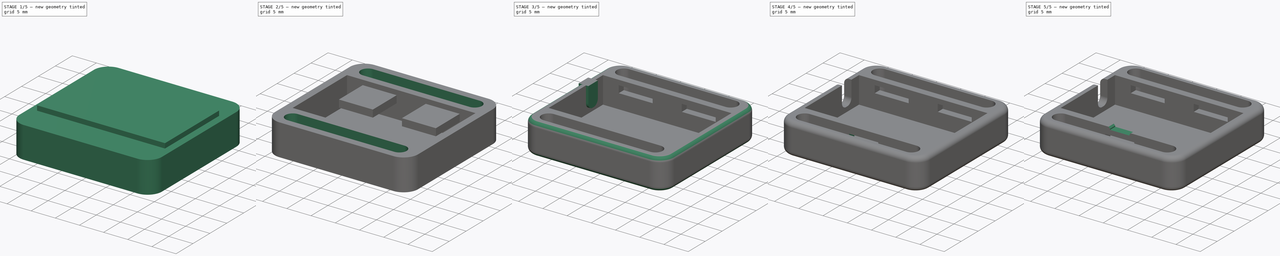
[diagram: build sequence overview — one tinted view per stage of 5, left to right]
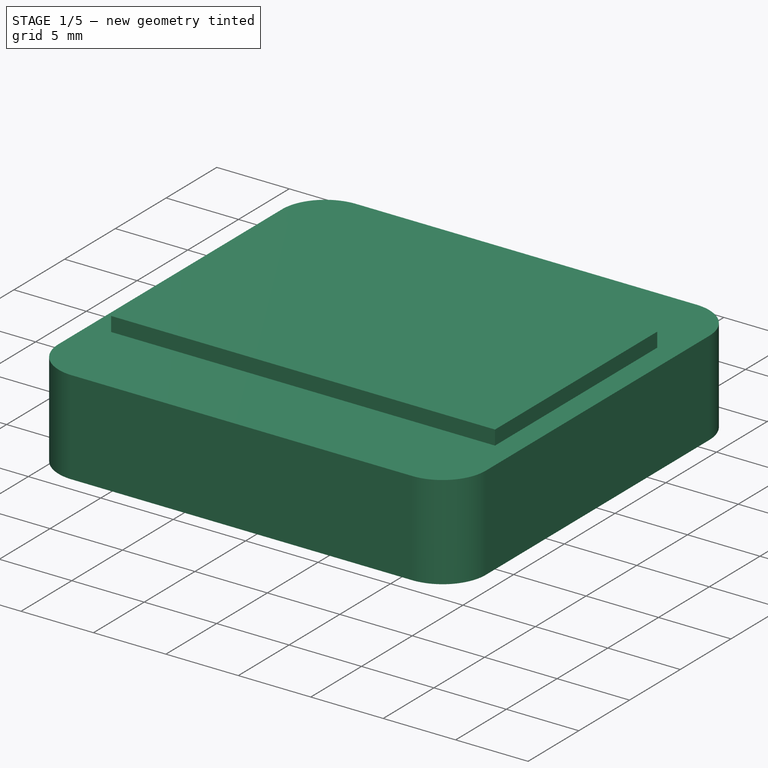
[diagram: stage 1 of 5 — iso view after this stage's code; geometry added in this stage tinted green]
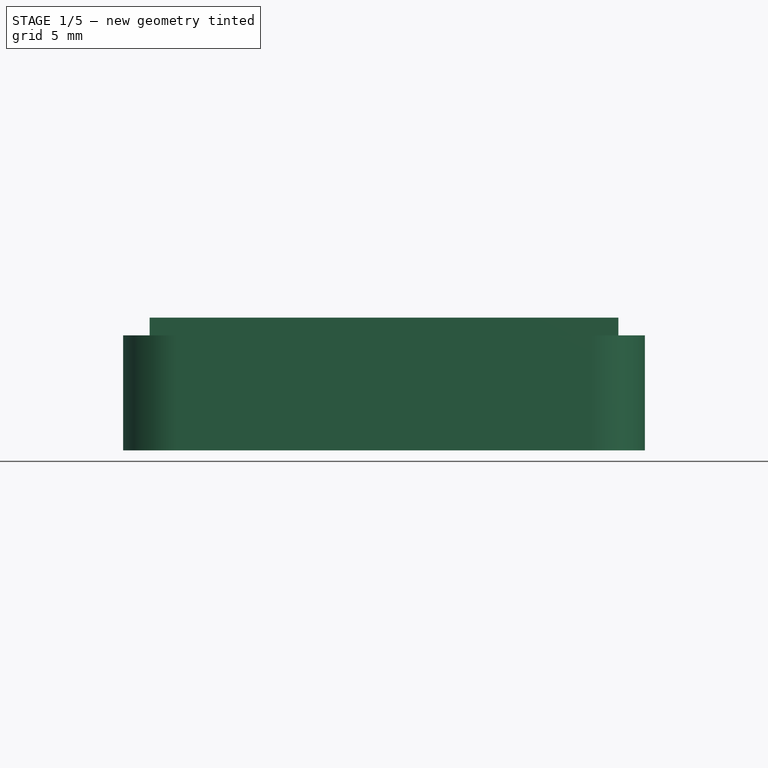
[diagram: stage 1 of 5 — front view after this stage's code; geometry added in this stage tinted green]
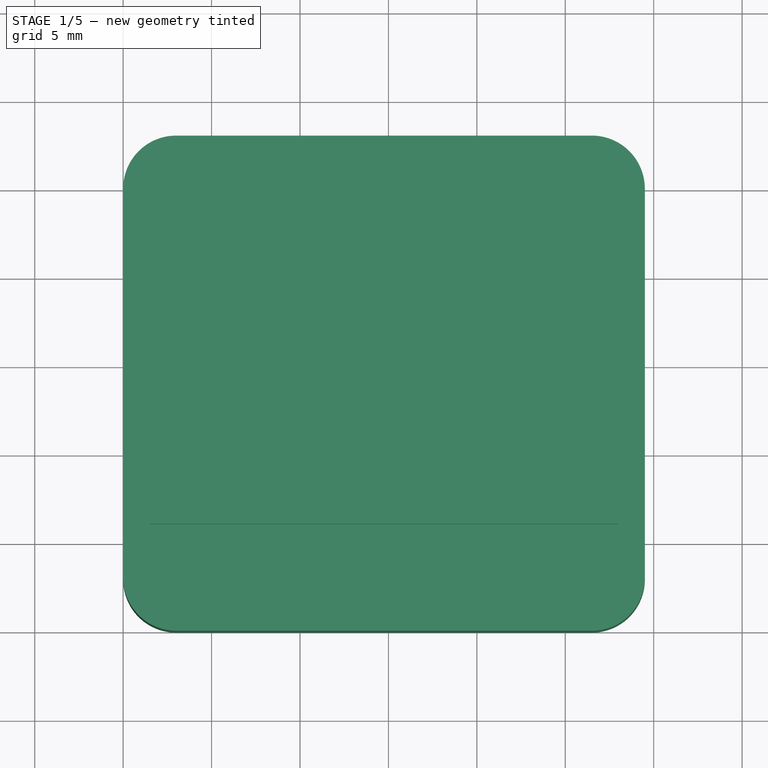
[diagram: stage 1 of 5 — top view after this stage's code; geometry added in this stage tinted green]
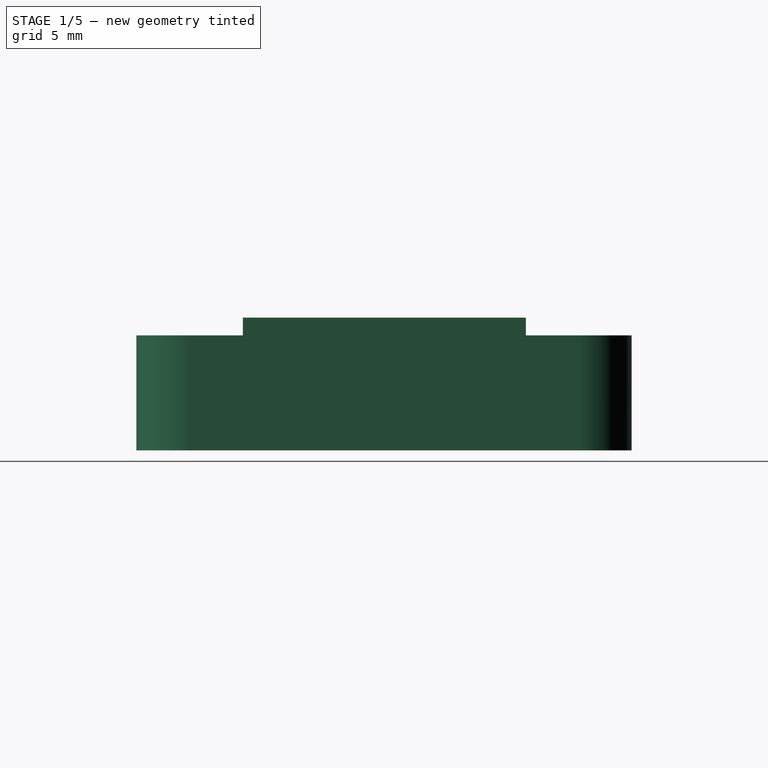
[diagram: stage 1 of 5 — right view after this stage's code; geometry added in this stage tinted green]
FCSTD DOCUMENT  (FreeCAD 0.17R13541 (Git))
Label: mpu9250bandCase
License: All rights reserved
LicenseURL: http://en.wikipedia.org/wiki/All_rights_reserved
objects: Sketcher::SketchObject×8, Part::Extrusion×7, Part::Cut×6, Part::Fillet×1, Part::Chamfer×1
note: 23 computed .brp shape members not serialized (recipe doc carries the construction recipe); baked Part::Feature solids carry a one-line shape summary decoded from their .brp

FEATURE [Sketcher::SketchObject] Sketch
  sketch-geometry (12):
    g0: LineSegment StartX=1.5 StartY=22.0208 StartZ=0 EndX=28 EndY=22.0208 EndZ=0
    g1: LineSegment StartX=28 StartY=22.0208 StartZ=0 EndX=28 EndY=6.0208 EndZ=0
    g2: LineSegment StartX=28 StartY=6.0208 StartZ=0 EndX=1.5 EndY=6.0208 EndZ=0
    g3: LineSegment StartX=1.5 StartY=6.0208 StartZ=0 EndX=1.5 EndY=22.0208 EndZ=0
    g4: LineSegment [constr] StartX=1.5 StartY=6.0208 StartZ=0 EndX=0 EndY=6.0208 EndZ=0
    g5: LineSegment [constr] StartX=0 StartY=0 StartZ=0 EndX=29.5 EndY=0 EndZ=0
    g6: LineSegment [constr] StartX=29.5 StartY=0 StartZ=0 EndX=29.5 EndY=28.0208 EndZ=0
    g7: LineSegment [constr] StartX=29.5 StartY=28.0208 StartZ=0 EndX=0 EndY=28.0208 EndZ=0
    g8: LineSegment [constr] StartX=0 StartY=28.0208 StartZ=0 EndX=0 EndY=0 EndZ=0
    g9: LineSegment [constr] StartX=27.5 StartY=28.0208 StartZ=0 EndX=28 EndY=22.0208 EndZ=0
    g10: LineSegment [constr] StartX=28 StartY=22.0208 StartZ=0 EndX=29.5 EndY=22.0208 EndZ=0
    g11: LineSegment [constr] StartX=1.5 StartY=6.0208 StartZ=0 EndX=1.5 EndY=0 EndZ=0
  constraints (34):
    c: Coincident(g1,g2)
    c: Coincident(g2,g3)
    c: Coincident(g3,g0)
    c: Horizontal(g0)
    c: Horizontal(g2)
    c: Vertical(g1)
    c: Vertical(g3)
    c: Distance(g0) = 26.5
    c: Distance(g3) = 16
    c: Horizontal(g4)
    c: Coincident(g1,g0)
    c: Coincident(g4,g2)
    c: Coincident(g5,g6)
    c: Coincident(g6,g7)
    c: Coincident(g7,g8)
    c: Coincident(g8,g5)
    c: Horizontal(g5)
    c: Horizontal(g7)
    c: Vertical(g6)
    c: Vertical(g8)
    c: Coincident(g5,g-1)
    c: PointOnObject(g9,g7)
    c: Coincident(g9,g0)
    c: PointOnObject(g10,g6)
    c: Horizontal(g10)
    c: Coincident(g11,g2)
    c: PointOnObject(g11,g5)
    c: Vertical(g11)
    c: PointOnObject(g4,g8)
    c: Equal(g9,g11)
    c: Equal(g4,g10)
    c: Coincident(g0,g10)
    c: DistanceY(g9,g9) = 6
    c: DistanceX(g10,g10) = 1.5
FEATURE [Sketcher::SketchObject] Sketch001
  MapMode = 2
  Support = -> [Sketch]
  sketch-geometry (12):
    g0: LineSegment StartX=3 StartY=28 StartZ=0 EndX=26.5 EndY=28 EndZ=0
    g1: LineSegment StartX=29.5 StartY=25 StartZ=0 EndX=29.5 EndY=3 EndZ=0
    g2: LineSegment StartX=26.5 StartY=0 StartZ=0 EndX=3 EndY=0 EndZ=0
    g3: LineSegment StartX=0 StartY=3 StartZ=0 EndX=0 EndY=25 EndZ=0
    g4: ArcOfCircle CenterX=3 CenterY=25 CenterZ=0 NormalX=0 NormalY=0 NormalZ=1 AngleXU=0 Radius=3 StartAngle=1.5708 EndAngle=3.14159
    g5: ArcOfCircle CenterX=26.5 CenterY=25 CenterZ=0 NormalX=0 NormalY=0 NormalZ=1 AngleXU=0 Radius=3 StartAngle=0 EndAngle=1.5708
    g6: ArcOfCircle CenterX=3 CenterY=3 CenterZ=0 NormalX=0 NormalY=0 NormalZ=1 AngleXU=0 Radius=3 StartAngle=3.14159 EndAngle=4.71239
    g7: ArcOfCircle CenterX=26.5 CenterY=3 CenterZ=0 NormalX=0 NormalY=0 NormalZ=1 AngleXU=0 Radius=3 StartAngle=4.71239 EndAngle=6.28319
    g8: LineSegment [constr] StartX=0 StartY=3 StartZ=0 EndX=0 EndY=0 EndZ=0
    g9: LineSegment [constr] StartX=0 StartY=0 StartZ=0 EndX=3 EndY=0 EndZ=0
    g10: LineSegment [constr] StartX=11.2665 StartY=28 StartZ=0 EndX=11.2665 EndY=0 EndZ=0
    g11: LineSegment [constr] StartX=0 StartY=11.1856 StartZ=0 EndX=29.5 EndY=11.1856 EndZ=0
  constraints (30):
    c: Horizontal(g0)
    c: Horizontal(g2)
    c: Vertical(g1)
    c: Vertical(g3)
    c: Tangent(g0,g4) = 1.5708
    c: Tangent(g3,g4) = 1.5708
    c: Tangent(g0,g5) = 1.5708
    c: Tangent(g1,g5) = 1.5708
    c: Tangent(g2,g6) = 1.5708
    c: Tangent(g3,g6) = 1.5708
    c: Tangent(g1,g7) = 1.5708
    c: Tangent(g2,g7) = 1.5708
    c: Radius(g4) = 3
    c: Equal(g4,g6)
    c: Equal(g4,g7)
    c: Equal(g4,g5)
    c: Coincident(g3,g8)
    c: Vertical(g8)
    c: Coincident(g8,g9)
    c: Coincident(g9,g2)
    c: Horizontal(g9)
    c: PointOnObject(g10,g0)
    c: PointOnObject(g10,g2)
    c: Vertical(g10)
    c: PointOnObject(g11,g3)
    c: PointOnObject(g11,g1)
    c: Horizontal(g11)
    c: Distance(g11) = 29.5
    c: DistanceY(g10,g10) = 28
    c: Coincident(g8,g-1)
FEATURE [Sketcher::SketchObject] Sketch002
  sketch-geometry (25):
    g0: LineSegment [constr] StartX=1.5 StartY=6 StartZ=0 EndX=0 EndY=6 EndZ=0
    g1: LineSegment [constr] StartX=14.75 StartY=28 StartZ=0 EndX=14.75 EndY=22 EndZ=0
    g2: LineSegment [constr] StartX=14.6289 StartY=6 StartZ=0 EndX=14.6289 EndY=0 EndZ=0
    g3: ArcOfCircle CenterX=3.75 CenterY=25 CenterZ=0 NormalX=0 NormalY=0 NormalZ=1 AngleXU=0 Radius=1.5 StartAngle=1.5708 EndAngle=4.71239
    g4: ArcOfCircle CenterX=25.75 CenterY=25 CenterZ=0 NormalX=0 NormalY=0 NormalZ=1 AngleXU=0 Radius=1.5 StartAngle=4.71239 EndAngle=7.85398
    g5: LineSegment StartX=3.75 StartY=23.5 StartZ=0 EndX=25.75 EndY=23.5 EndZ=0
    g6: LineSegment StartX=3.75 StartY=26.5 StartZ=0 EndX=25.75 EndY=26.5 EndZ=0
    g7: ArcOfCircle CenterX=3.62891 CenterY=3 CenterZ=0 NormalX=0 NormalY=0 NormalZ=1 AngleXU=0 Radius=1.5 StartAngle=1.5708 EndAngle=4.71239
    g8: ArcOfCircle CenterX=25.6289 CenterY=3 CenterZ=0 NormalX=0 NormalY=0 NormalZ=1 AngleXU=0 Radius=1.5 StartAngle=4.71239 EndAngle=7.85398
    g9: LineSegment StartX=3.62891 StartY=1.5 StartZ=0 EndX=25.6289 EndY=1.5 EndZ=0
    g10: LineSegment StartX=3.62891 StartY=4.5 StartZ=0 EndX=25.6289 EndY=4.5 EndZ=0
    g11: LineSegment [constr] StartX=3.75 StartY=25 StartZ=0 EndX=14.75 EndY=25 EndZ=0
    g12: LineSegment [constr] StartX=14.75 StartY=25 StartZ=0 EndX=25.75 EndY=25 EndZ=0
    g13: LineSegment [constr] StartX=3.62891 StartY=3 StartZ=0 EndX=14.6289 EndY=3 EndZ=0
    g14: LineSegment [constr] StartX=25.6289 StartY=3 StartZ=0 EndX=14.6289 EndY=3 EndZ=0
    g15: LineSegment [constr] StartX=0 StartY=0 StartZ=0 EndX=29.5 EndY=0 EndZ=0
    g16: LineSegment [constr] StartX=29.5 StartY=0 StartZ=0 EndX=29.5 EndY=28 EndZ=0
    g17: LineSegment [constr] StartX=0 StartY=28 StartZ=0 EndX=0 EndY=0 EndZ=0
    g18: LineSegment [constr] StartX=28 StartY=22 StartZ=0 EndX=29.5 EndY=22 EndZ=0
    g19: LineSegment [constr] StartX=1.5 StartY=22 StartZ=0 EndX=28 EndY=22 EndZ=0
    g20: LineSegment [constr] StartX=28 StartY=22 StartZ=0 EndX=28 EndY=6 EndZ=0
    g21: LineSegment [constr] StartX=28 StartY=6 StartZ=0 EndX=1.5 EndY=6 EndZ=0
    g22: LineSegment [constr] StartX=1.5 StartY=6 StartZ=0 EndX=1.5 EndY=22 EndZ=0
    g23: LineSegment [constr] StartX=0 StartY=28 StartZ=0 EndX=14.75 EndY=28 EndZ=0
    g24: LineSegment [constr] StartX=14.75 StartY=28 StartZ=0 EndX=29.5 EndY=28 EndZ=0
  constraints (68):
    c: Horizontal(g0)
    c: Vertical(g1)
    c: Vertical(g2)
    c: Equal(g1,g2)
    c: Distance(g2) = 6
    c: Tangent(g3,g6) = 1.5708
    c: Tangent(g3,g5) = -1.5708
    c: Tangent(g5,g4) = -1.5708
    c: Tangent(g6,g4) = 1.5708
    c: Horizontal(g5)
    c: Equal(g3,g4)
    c: Tangent(g7,g10) = 1.5708
    c: Tangent(g7,g9) = -1.5708
    c: Tangent(g9,g8) = -1.5708
    c: Tangent(g10,g8) = 1.5708
    c: Horizontal(g9)
    c: Equal(g7,g8)
    c: Coincident(g11,g3)
    c: PointOnObject(g11,g1)
    c: Horizontal(g11)
    c: Coincident(g11,g12)
    c: Coincident(g12,g4)
    c: Symmetric(g3,g4,g11)
    c: Symmetric(g1,g1,g11)
    c: Coincident(g13,g7)
    c: PointOnObject(g13,g2)
    c: Horizontal(g13)
    c: Coincident(g14,g8)
    c: Horizontal(g14)
    c: Symmetric(g7,g8,g13)
    c: Radius(g4) = 1.5
    c: Equal(g4,g8)
    c: Equal(g5,g10)
    c: Distance(g10) = 22
    c: Symmetric(g2,g2,g14)
    c: Coincident(g15,g16)
    c: Coincident(g17,g15)
    c: Horizontal(g15)
    c: Vertical(g16)
    c: Vertical(g17)
    c: Coincident(g15,g-1)
    c: PointOnObject(g18,g16)
    c: Horizontal(g18)
    c: PointOnObject(g0,g17)
    c: Equal(g0,g18)
    c: DistanceX(g18,g18) = 1.5
    c: Coincident(g19,g20)
    c: Coincident(g20,g21)
    c: Coincident(g21,g22)
    c: Coincident(g22,g19)
    c: Horizontal(g19)
    c: Horizontal(g21)
    c: Vertical(g20)
    c: Vertical(g22)
    c: Coincident(g21,g0)
    c: Coincident(g18,g19)
    c: PointOnObject(g2,g21)
    c: DistanceY(g22,g22) = 16
    c: DistanceX(g19,g19) = 26.5
    c: PointOnObject(g2,g15)
    c: PointOnObject(g1,g19)
    c: Coincident(g17,g23)
    c: Coincident(g23,g1)
    c: Horizontal(g23)
    c: Coincident(g23,g24)
    c: Coincident(g24,g16)
    c: Horizontal(g24)
    c: Equal(g23,g24)
FEATURE [Part::Extrusion] Extrude
  Base = -> Sketch001
  Dir = (0,0,1)
  DirMode = 2
  FaceMakerClass = Part::FaceMakerBullseye
  LengthFwd = 5
  LengthRev = 1.5
  Solid = true
  Symmetric = false
FEATURE [Part::Extrusion] Extrude001
  Base = -> Sketch
  Dir = (0,0,1)
  DirMode = 2
  FaceMakerClass = Part::FaceMakerBullseye
  LengthFwd = 6
  LengthRev = 0.5
  Solid = true
  Symmetric = false
FEATURE [Sketcher::SketchObject] Sketch003
  Placement = pos=(0,0,0) rot=(1,0,0;1.5708rad)
  sketch-geometry (9):
    g0: LineSegment StartX=4.75 StartY=4 StartZ=0 EndX=11.75 EndY=4 EndZ=0
    g1: LineSegment StartX=11.75 StartY=4 StartZ=0 EndX=11.75 EndY=2.5 EndZ=0
    g2: LineSegment StartX=11.75 StartY=2.5 StartZ=0 EndX=4.75 EndY=2.5 EndZ=0
    g3: LineSegment StartX=4.75 StartY=2.5 StartZ=0 EndX=4.75 EndY=4 EndZ=0
    g4: LineSegment StartX=17.75 StartY=4 StartZ=0 EndX=24.75 EndY=4 EndZ=0
    g5: LineSegment StartX=24.75 StartY=4 StartZ=0 EndX=24.75 EndY=2.5 EndZ=0
    g6: LineSegment StartX=24.75 StartY=2.5 StartZ=0 EndX=17.75 EndY=2.5 EndZ=0
    g7: LineSegment StartX=17.75 StartY=2.5 StartZ=0 EndX=17.75 EndY=4 EndZ=0
    g8: LineSegment [constr] StartX=11.75 StartY=2.5 StartZ=0 EndX=17.75 EndY=2.5 EndZ=0
  constraints (26):
    c: Coincident(g0,g1)
    c: Coincident(g1,g2)
    c: Coincident(g2,g3)
    c: Coincident(g3,g0)
    c: Horizontal(g0)
    c: Horizontal(g2)
    c: Vertical(g1)
    c: Vertical(g3)
    c: DistanceX(g2) = 4.75
    c: DistanceY(g2) = 2.5
    c: DistanceY(g1,g1) = 1.5
    c: DistanceX(g2,g2) = 7
    c: Coincident(g4,g5)
    c: Coincident(g5,g6)
    c: Coincident(g6,g7)
    c: Coincident(g7,g4)
    c: Horizontal(g4)
    c: Horizontal(g6)
    c: Vertical(g5)
    c: Vertical(g7)
    c: Equal(g1,g7)
    c: Equal(g4,g0)
    c: Coincident(g8,g1)
    c: Coincident(g8,g6)
    c: Horizontal(g8)
    c: DistanceX(g8,g8) = 6
FEATURE [Part::Extrusion] Extrude003
  Base = -> Sketch003
  Dir = (0,-1,0)
  DirMode = 2
  FaceMakerClass = Part::FaceMakerBullseye
  LengthFwd = -15
  LengthRev = 25
  Solid = true
  Symmetric = false
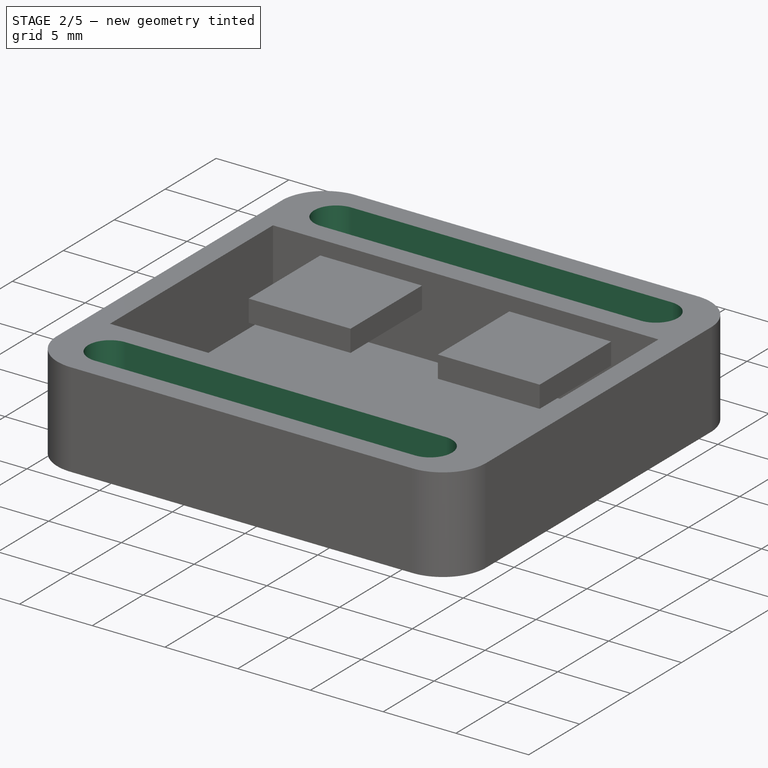
[diagram: stage 2 of 5 — iso view after this stage's code; geometry added in this stage tinted green]
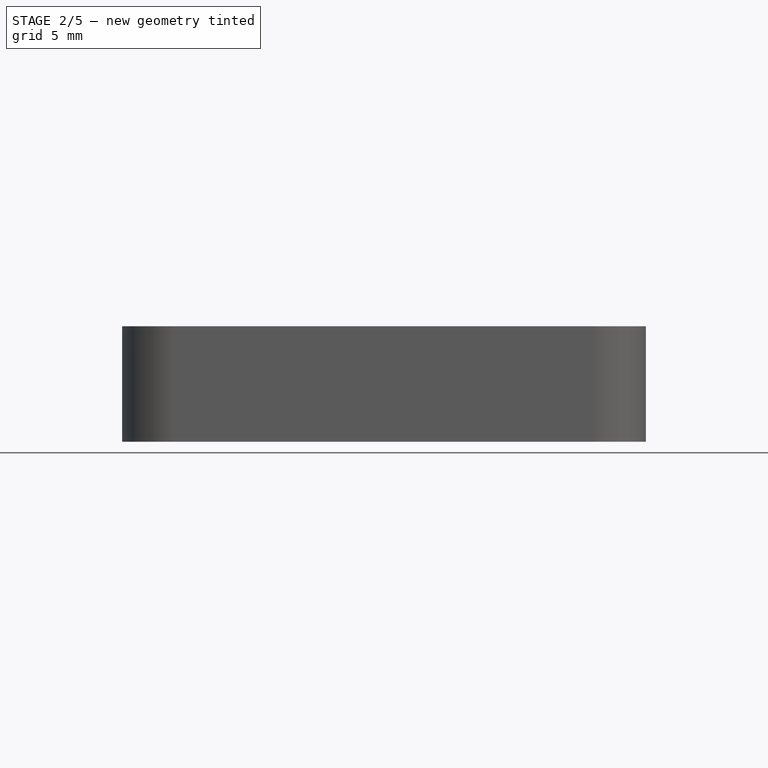
[diagram: stage 2 of 5 — front view after this stage's code; geometry added in this stage tinted green]
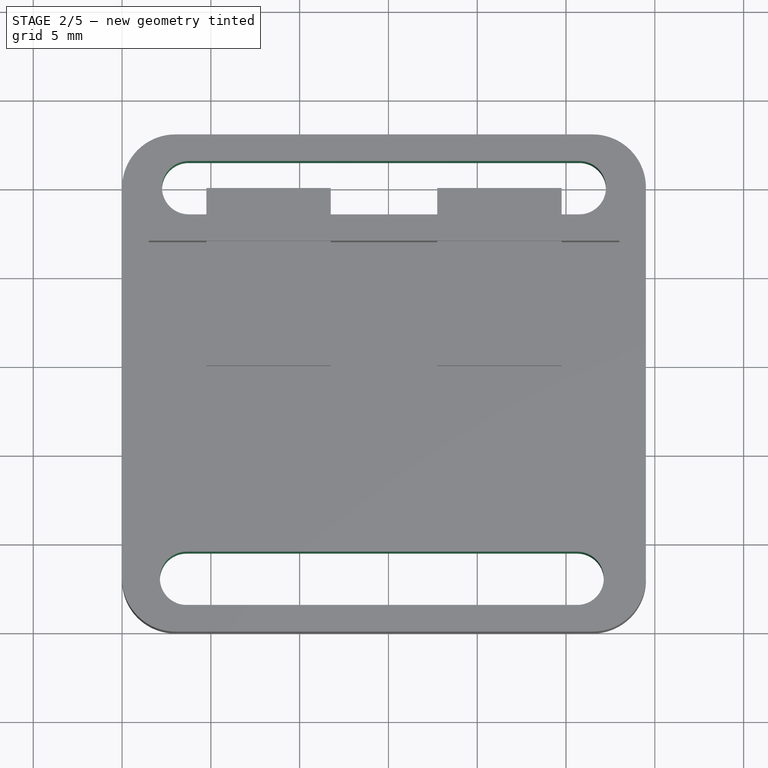
[diagram: stage 2 of 5 — top view after this stage's code; geometry added in this stage tinted green]
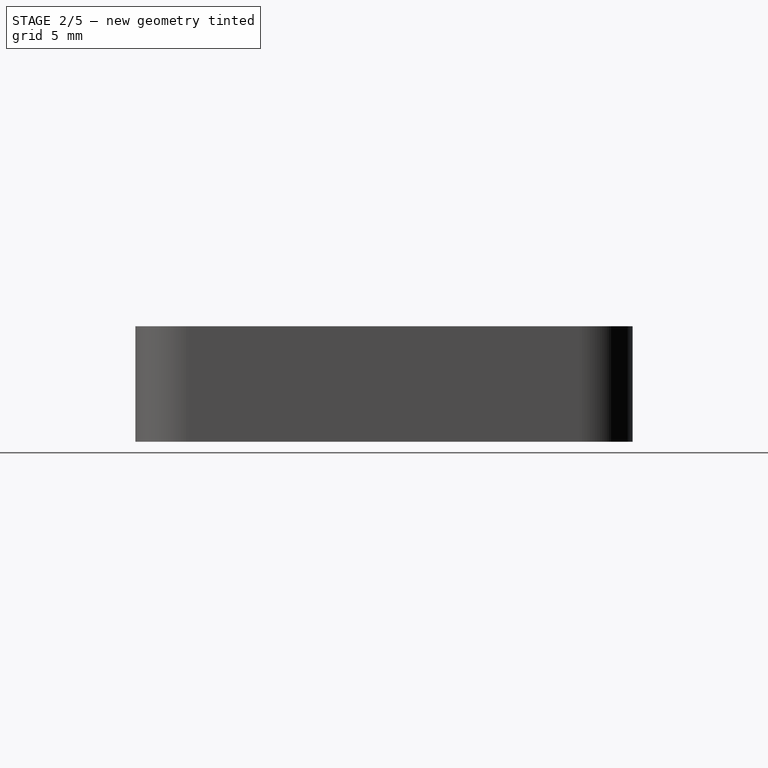
[diagram: stage 2 of 5 — right view after this stage's code; geometry added in this stage tinted green]
FEATURE [Part::Extrusion] Extrude002
  Base = -> Sketch002
  Dir = (0,0,1)
  DirMode = 2
  FaceMakerClass = Part::FaceMakerBullseye
  LengthFwd = 6
  LengthRev = 2
  Solid = true
  Symmetric = false
FEATURE [Part::Cut] Cut
  Base = -> Extrude
  Tool = -> Extrude001
FEATURE [Part::Cut] Cut001
  Base = -> Cut
  Tool = -> Extrude002
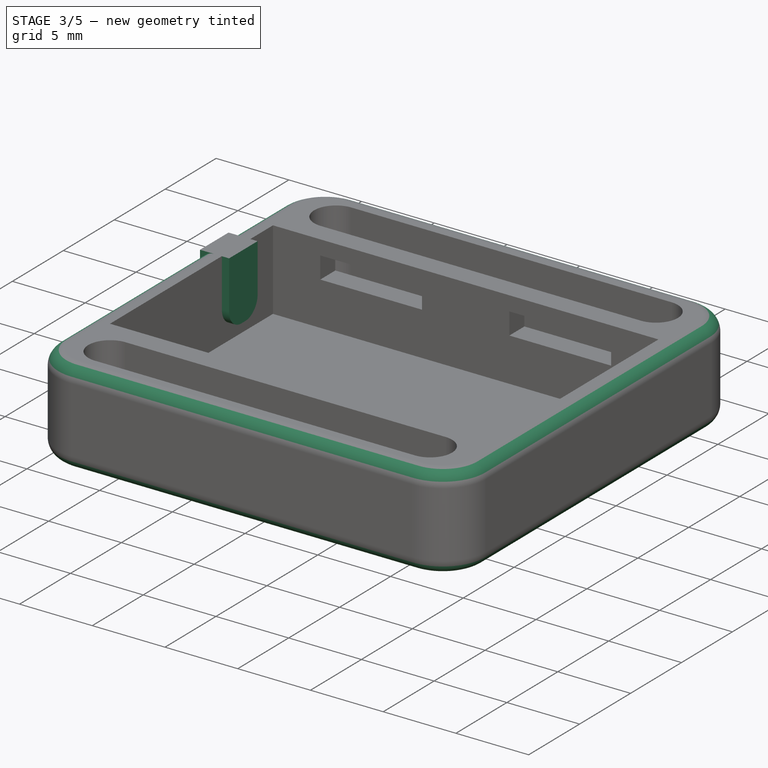
[diagram: stage 3 of 5 — iso view after this stage's code; geometry added in this stage tinted green]
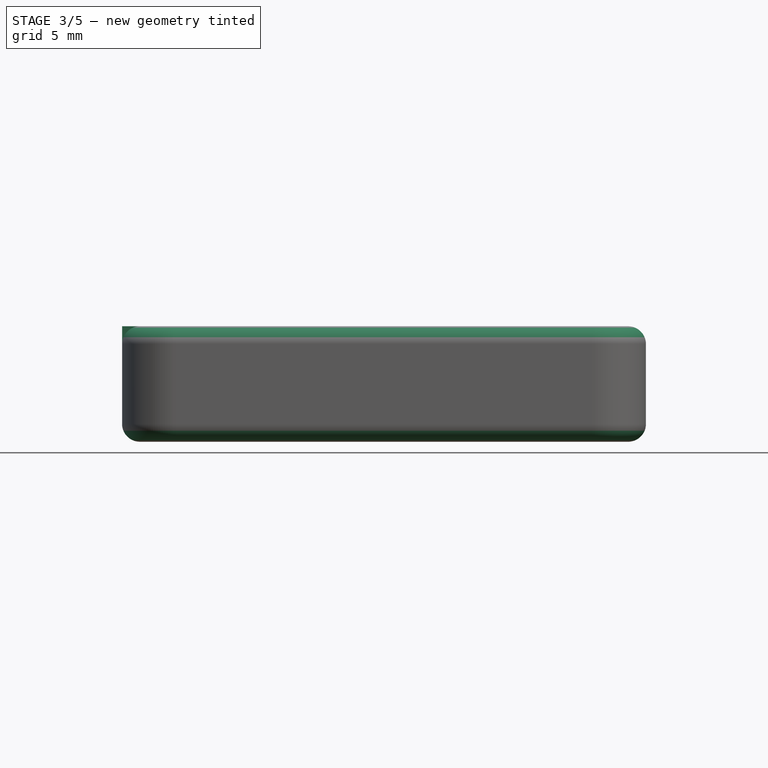
[diagram: stage 3 of 5 — front view after this stage's code; geometry added in this stage tinted green]
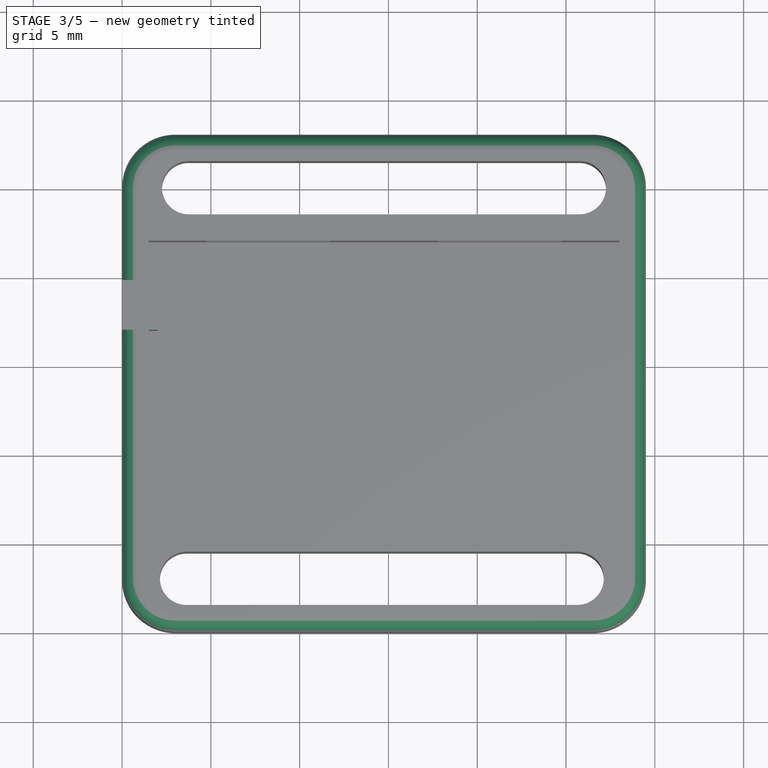
[diagram: stage 3 of 5 — top view after this stage's code; geometry added in this stage tinted green]
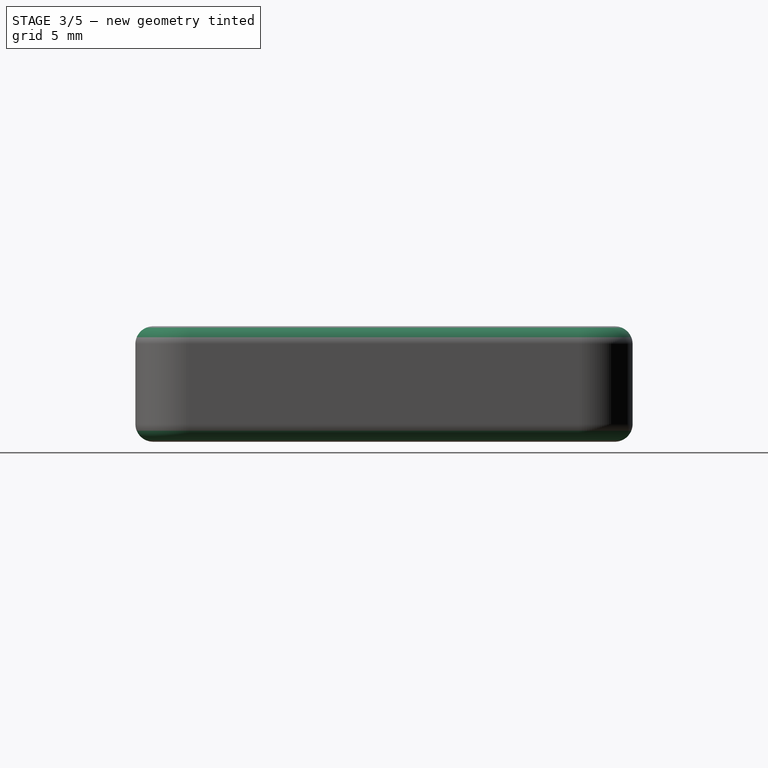
[diagram: stage 3 of 5 — right view after this stage's code; geometry added in this stage tinted green]
FEATURE [Part::Cut] Cut002
  Base = -> Cut001
  Tool = -> Extrude003
FEATURE [Sketcher::SketchObject] Sketch004
  sketch-geometry (3):
    g0: Circle CenterX=4.25 CenterY=8.5 CenterZ=0 NormalX=0 NormalY=0 NormalZ=1 AngleXU=0 Radius=1.5
    g1: Circle CenterX=25.25 CenterY=8.5 CenterZ=0 NormalX=0 NormalY=0 NormalZ=1 AngleXU=0 Radius=1.5
    g2: LineSegment [constr] StartX=4.25 StartY=8.5 StartZ=0 EndX=25.25 EndY=8.5 EndZ=0
  constraints (8):
    c: Radius(g0) = 1.5
    c: Equal(g0,g1)
    c: Coincident(g2,g0)
    c: Coincident(g2,g1)
    c: Horizontal(g2)
    c: DistanceX(g0) = 4.25
    c: DistanceY(g0) = 8.5
    c: DistanceX(g2,g2) = 21
FEATURE [Sketcher::SketchObject] Sketch005
  Placement = pos=(0,0,0) rot=(0.57735,0.57735,0.57735;2.0944rad)
  sketch-geometry (8):
    g0: LineSegment StartX=17 StartY=5 StartZ=0 EndX=19.8 EndY=5 EndZ=0
    g1: LineSegment StartX=19.8 StartY=5 StartZ=0 EndX=19.8 EndY=1.7 EndZ=0
    g2: LineSegment StartX=18.6 StartY=0.5 StartZ=0 EndX=18.2 EndY=0.5 EndZ=0
    g3: LineSegment StartX=17 StartY=1.7 StartZ=0 EndX=17 EndY=5 EndZ=0
    g4: ArcOfCircle CenterX=18.2 CenterY=1.7 CenterZ=0 NormalX=0 NormalY=0 NormalZ=1 AngleXU=0 Radius=1.2 StartAngle=3.14159 EndAngle=4.71239
    g5: ArcOfCircle CenterX=18.6 CenterY=1.7 CenterZ=0 NormalX=0 NormalY=0 NormalZ=1 AngleXU=0 Radius=1.2 StartAngle=4.71239 EndAngle=6.28319
    g6: LineSegment [constr] StartX=0 StartY=5 StartZ=0 EndX=24.2299 EndY=5 EndZ=0
    g7: LineSegment [constr] StartX=18.2 StartY=5 StartZ=0 EndX=18.2 EndY=0.5 EndZ=0
  constraints (22):
    c: Coincident(g0,g1)
    c: Coincident(g3,g0)
    c: Horizontal(g0)
    c: Horizontal(g2)
    c: Vertical(g1)
    c: Vertical(g3)
    c: Tangent(g2,g4) = 1.5708
    c: Tangent(g3,g4) = 1.5708
    c: Tangent(g1,g5) = 1.5708
    c: Tangent(g2,g5) = 1.5708
    c: PointOnObject(g6,g-2)
    c: Horizontal(g6)
    c: Distance(g-1,g6) = 5
    c: PointOnObject(g0,g6)
    c: PointOnObject(g7,g0)
    c: Coincident(g7,g2)
    c: Vertical(g7)
    c: DistanceY(g7,g7) = 4.5
    c: Radius(g4) = 1.2
    c: Equal(g4,g5)
    c: Distance(g0,g6) = 17
    c: DistanceX(g0,g0) = 2.8
FEATURE [Part::Extrusion] Extrude005
  Base = -> Sketch005
  Dir = (1,0,0)
  DirMode = 2
  FaceMakerClass = Part::FaceMakerBullseye
  LengthFwd = 2
  LengthRev = 0
  Solid = true
  Symmetric = false
FEATURE [Part::Fillet] Fillet
  Base = -> Cut002
  Edges = 15 edges r=1: [Edge3,Edge4,Edge6,Edge7,Edge9,Edge11,Edge12,Edge13,Edge14,Edge15,Edge24,Edge25,Edge26,Edge27,Edge28]
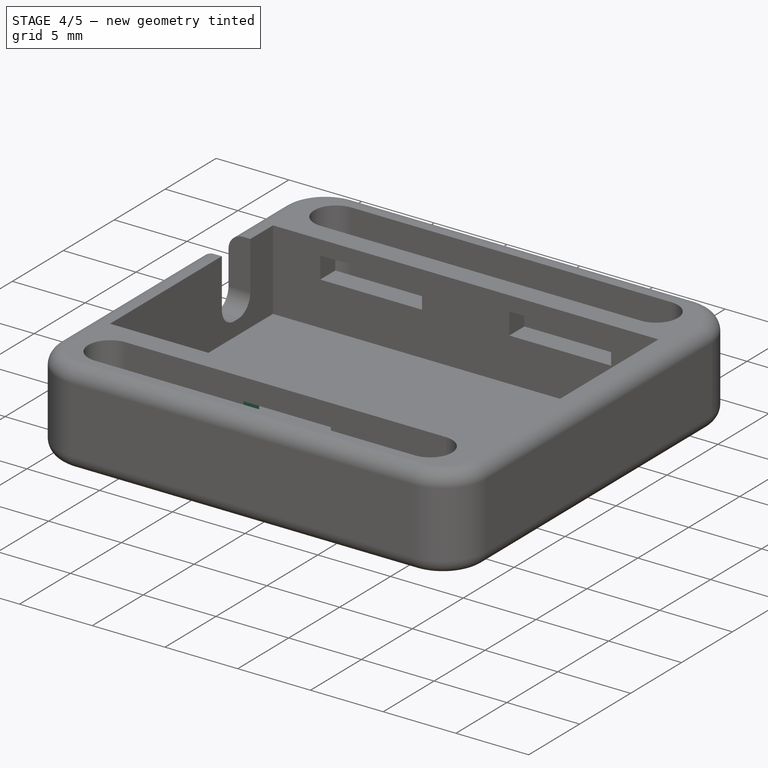
[diagram: stage 4 of 5 — iso view after this stage's code; geometry added in this stage tinted green]
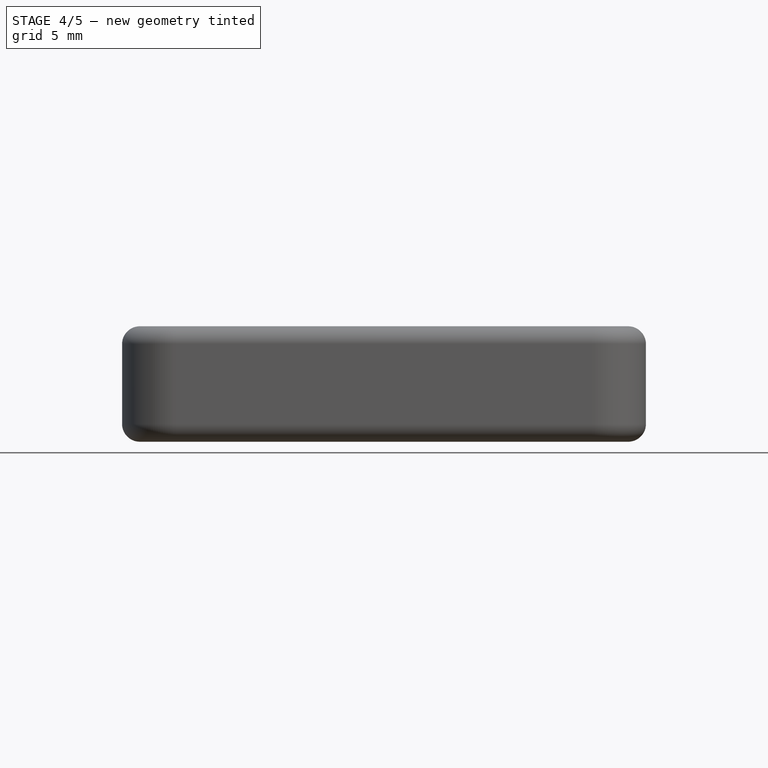
[diagram: stage 4 of 5 — front view after this stage's code; geometry added in this stage tinted green]
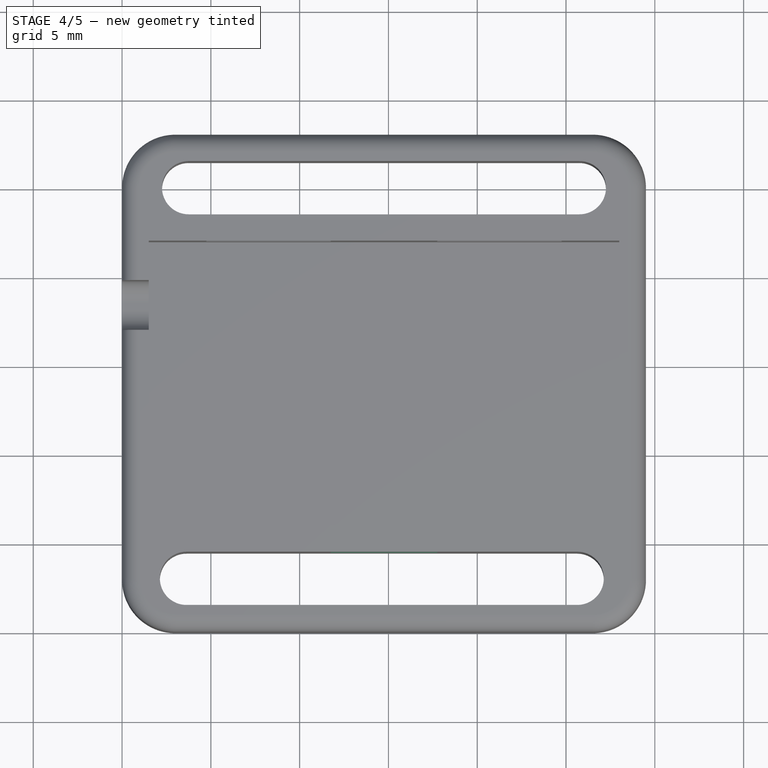
[diagram: stage 4 of 5 — top view after this stage's code; geometry added in this stage tinted green]
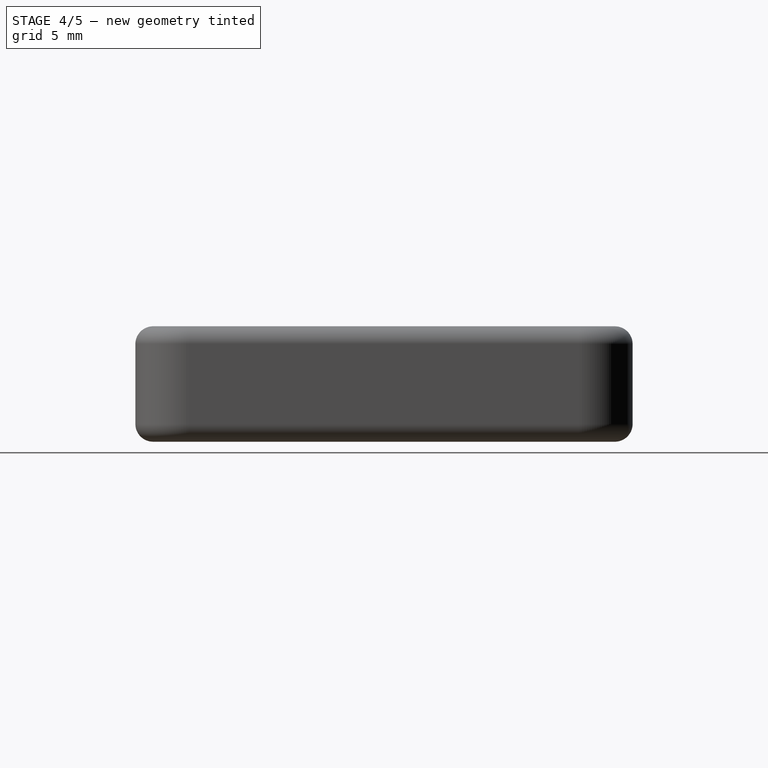
[diagram: stage 4 of 5 — right view after this stage's code; geometry added in this stage tinted green]
FEATURE [Sketcher::SketchObject] Sketch006
  MapMode = 3
  Placement = pos=(0,0,0) rot=(1,0,0;1.5708rad)
  Support = -> [Extrude005]
  sketch-geometry (6):
    g0: LineSegment StartX=11.75 StartY=3.5 StartZ=0 EndX=17.75 EndY=3.5 EndZ=0
    g1: LineSegment StartX=17.75 StartY=3.5 StartZ=0 EndX=17.75 EndY=2 EndZ=0
    g2: LineSegment StartX=17.75 StartY=2 StartZ=0 EndX=11.75 EndY=2 EndZ=0
    g3: LineSegment StartX=11.75 StartY=2 StartZ=0 EndX=11.75 EndY=3.5 EndZ=0
    g4: LineSegment [constr] StartX=0 StartY=2 StartZ=0 EndX=14.75 EndY=2 EndZ=0
    g5: LineSegment [constr] StartX=14.75 StartY=2 StartZ=0 EndX=29.5 EndY=2 EndZ=0
  constraints (18):
    c: Coincident(g0,g1)
    c: Coincident(g1,g2)
    c: Coincident(g2,g3)
    c: Coincident(g3,g0)
    c: Horizontal(g0)
    c: Horizontal(g2)
    c: Vertical(g1)
    c: Vertical(g3)
    c: DistanceY(g1,g1) = 1.5
    c: DistanceX(g0,g0) = 6
    c: PointOnObject(g4,g-2)
    c: Horizontal(g4)
    c: Coincident(g4,g5)
    c: Horizontal(g5)
    c: Distance(g4,g5) = 29.5
    c: Equal(g4,g5)
    c: Symmetric(g2,g1,g4)
    c: Distance(g4,g-1) = 2
FEATURE [Part::Extrusion] Extrude006
  Base = -> Sketch006
  Dir = (0,-1,0)
  DirMode = 2
  FaceMakerClass = Part::FaceMakerBullseye
  LengthFwd = -4
  LengthRev = 8
  Solid = true
  Symmetric = false
FEATURE [Part::Cut] Cut004
  Base = -> Fillet
  Tool = -> Extrude005
FEATURE [Part::Cut] Cut005
  Base = -> Cut004
  Tool = -> Extrude006
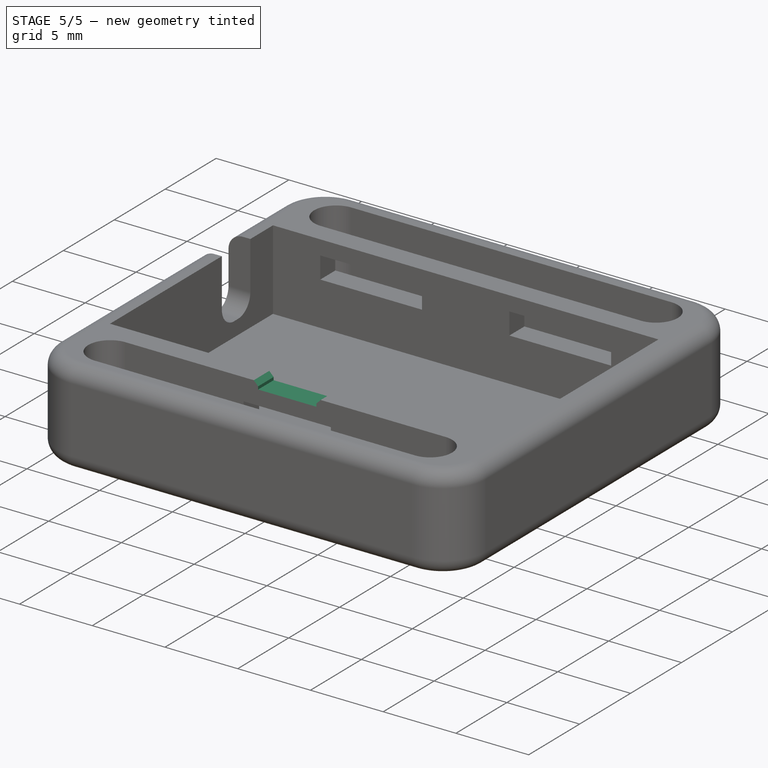
[diagram: stage 5 of 5 — iso view after this stage's code; geometry added in this stage tinted green]
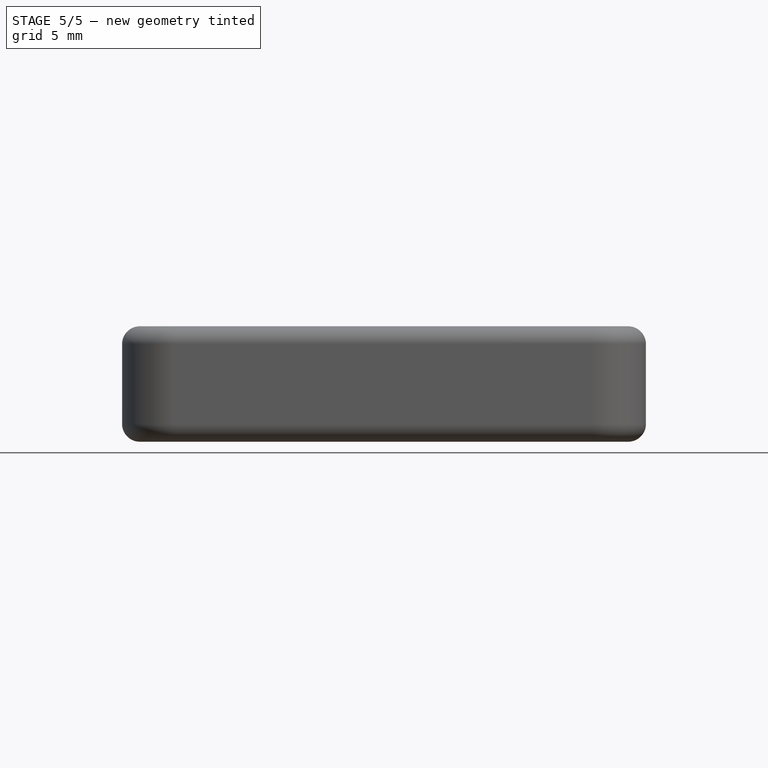
[diagram: stage 5 of 5 — front view after this stage's code; geometry added in this stage tinted green]
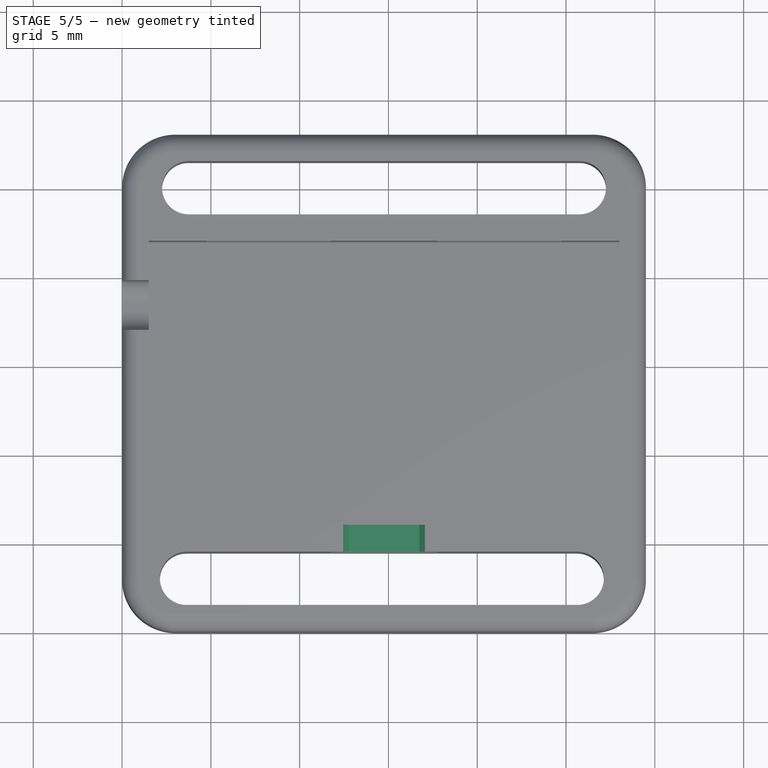
[diagram: stage 5 of 5 — top view after this stage's code; geometry added in this stage tinted green]
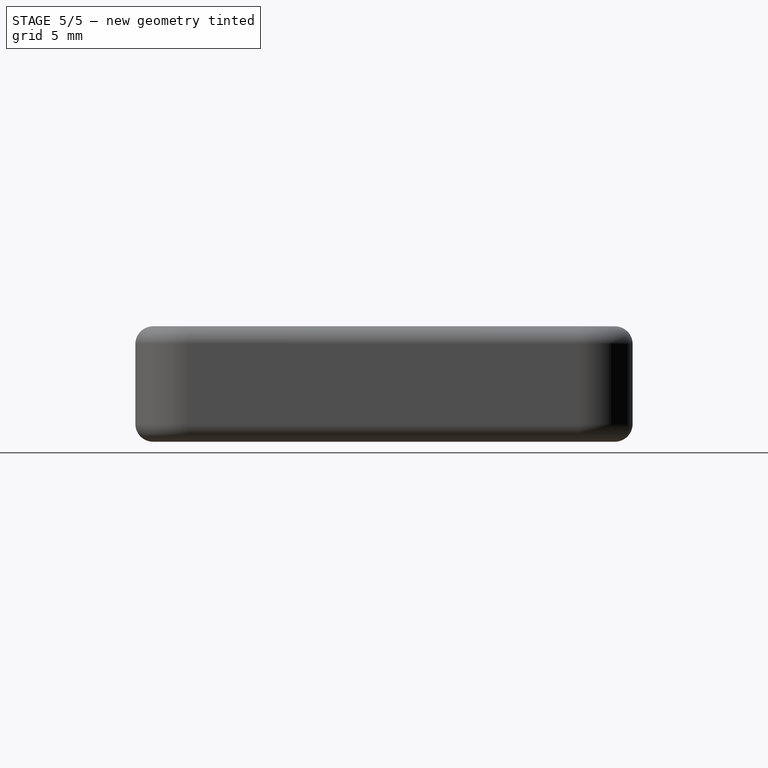
[diagram: stage 5 of 5 — right view after this stage's code; geometry added in this stage tinted green]
FEATURE [Sketcher::SketchObject] Sketch007
  MapMode = 2
  Support = -> [Cut005]
  sketch-geometry (6):
    g0: LineSegment StartX=12.75 StartY=6.91945 StartZ=0 EndX=16.75 EndY=6.91945 EndZ=0
    g1: LineSegment StartX=16.75 StartY=6.91945 StartZ=0 EndX=16.75 EndY=3.91945 EndZ=0
    g2: LineSegment StartX=16.75 StartY=3.91945 StartZ=0 EndX=12.75 EndY=3.91945 EndZ=0
    g3: LineSegment StartX=12.75 StartY=3.91945 StartZ=0 EndX=12.75 EndY=6.91945 EndZ=0
    g4: LineSegment [constr] StartX=0 StartY=3.91945 StartZ=0 EndX=29.5 EndY=3.91945 EndZ=0
    g5: GeomPoint X=14.75 Y=3.91945 Z=0
  constraints (16):
    c: Coincident(g0,g1)
    c: Coincident(g1,g2)
    c: Coincident(g2,g3)
    c: Coincident(g3,g0)
    c: Horizontal(g0)
    c: Horizontal(g2)
    c: Vertical(g1)
    c: Vertical(g3)
    c: PointOnObject(g4,g-2)
    c: Horizontal(g4)
    c: PointOnObject(g5,g4)
    c: Symmetric(g4,g4,g5)
    c: Symmetric(g2,g1,g5)
    c: DistanceX(g4,g4) = 29.5
    c: DistanceX(g0,g0) = 4
    c: DistanceY(g1,g1) = 3
FEATURE [Part::Extrusion] Extrude007
  Base = -> Sketch007
  Dir = (0,0,1)
  DirMode = 2
  FaceMakerClass = Part::FaceMakerBullseye
  LengthFwd = 5
  LengthRev = -4.5
  Solid = true
  Symmetric = false
FEATURE [Part::Cut] Cut006
  Base = -> Cut005
  Tool = -> Extrude007
FEATURE [Part::Chamfer] Chamfer
  Base = -> Cut006
  Edges = 2 edges r=0.3: [Edge61,Edge67]
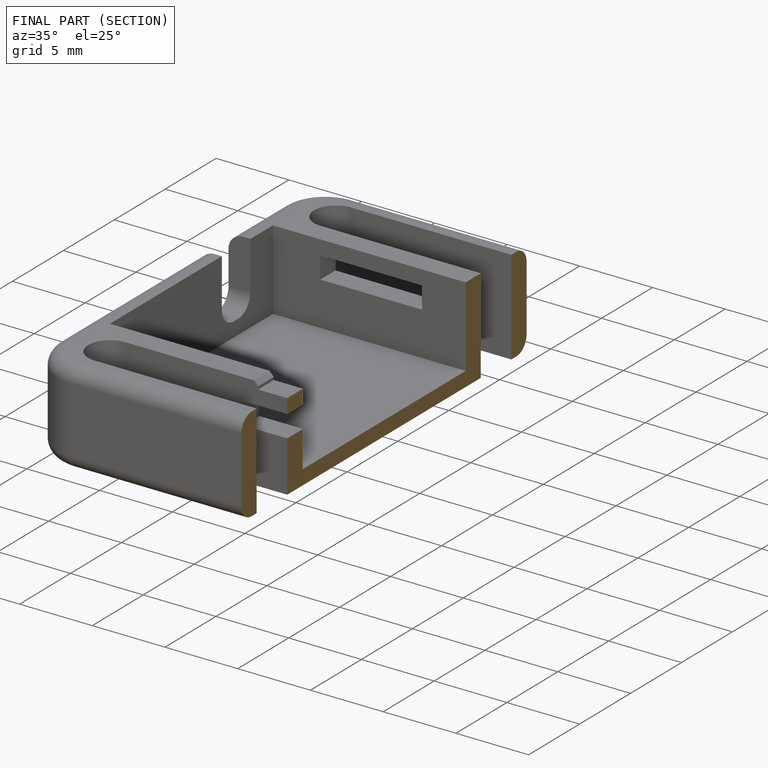
[diagram: finished part — half-section view (interior)]
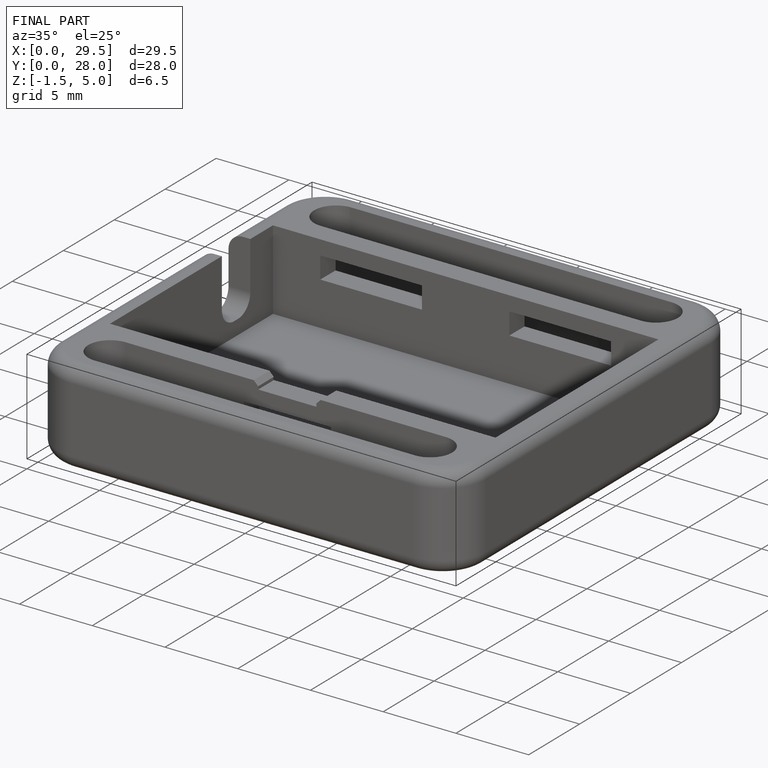
[diagram: finished part — iso view with bounding-box wireframe]
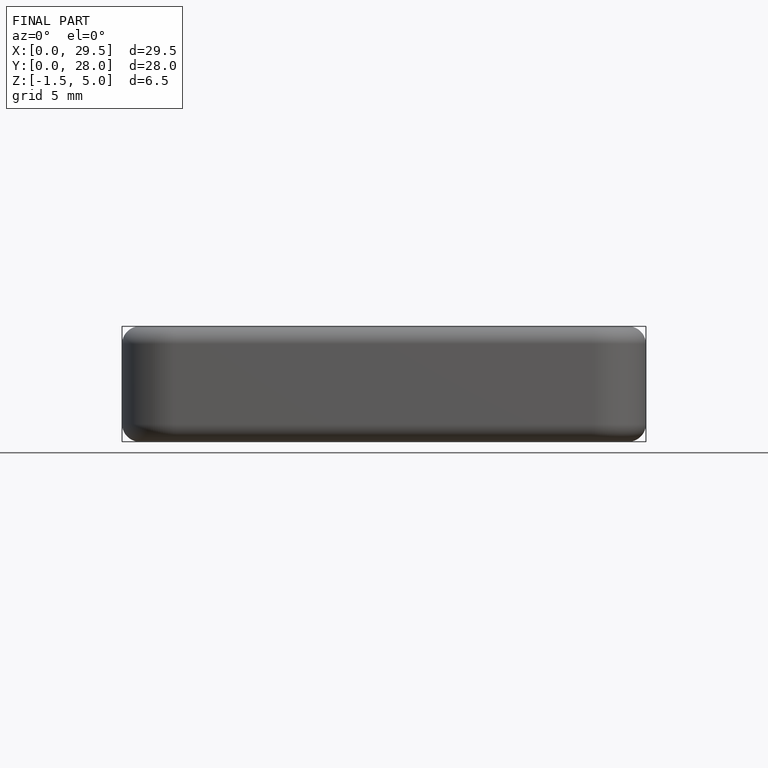
[diagram: finished part — front view with bounding-box wireframe]
